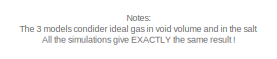
[diagram: root canvas - part 1/2, top center region]
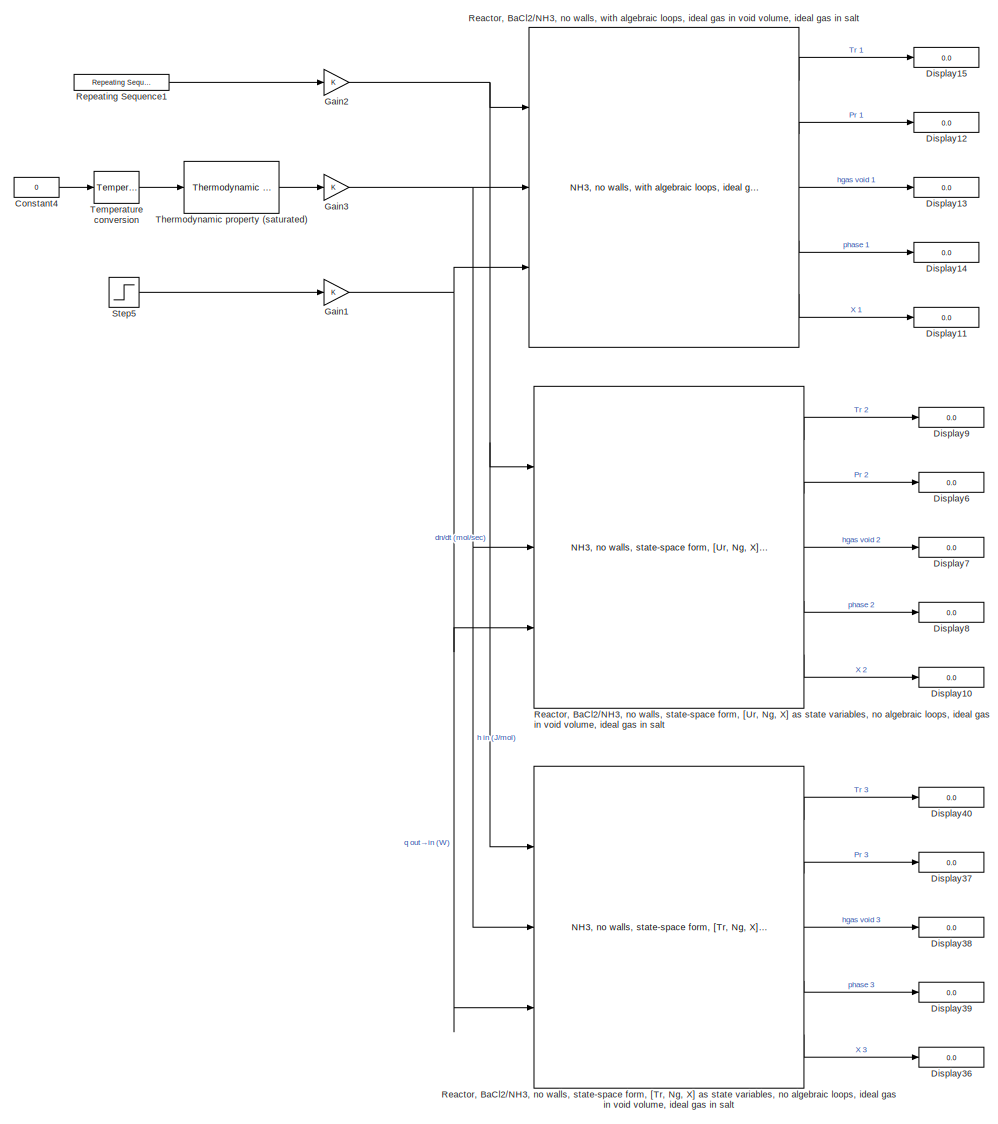
[diagram: root canvas - part 2/2, most of the canvas]
MODEL slx_cdc40fb6b7f8
KIND model
CONFIG AbsTol = auto
CONFIG EnableMultiTasking = off
CONFIG FixedStep = auto
CONFIG MaxStep = 0.2
CONFIG MinStep = auto
CONFIG RelTol = 1e-3
CONFIG SampleTimeConstraint = Unconstrained
CONFIG Solver = ode23tb
CONFIG SolverName = ode23tb
CONFIG StartTime = 0.0
CONFIG StopTime = 1400
BLOCK [Constant] Constant4
  Value = 0
BLOCK [Display] Display10
  Decimation = 1
  Ports = [1]
BLOCK [Display] Display11
  Decimation = 1
  Ports = [1]
BLOCK [Display] Display12
  Decimation = 1
  Ports = [1]
BLOCK [Display] Display13
  Decimation = 1
  Ports = [1]
BLOCK [Display] Display14
  Decimation = 1
  Ports = [1]
BLOCK [Display] Display15
  Decimation = 1
  Ports = [1]
BLOCK [Display] Display36
  Decimation = 1
  Ports = [1]
BLOCK [Display] Display37
  Decimation = 1
  Ports = [1]
BLOCK [Display] Display38
  Decimation = 1
  Ports = [1]
BLOCK [Display] Display39
  Decimation = 1
  Ports = [1]
BLOCK [Display] Display40
  Decimation = 1
  Ports = [1]
BLOCK [Display] Display6
  Decimation = 1
  Ports = [1]
BLOCK [Display] Display7
  Decimation = 1
  Ports = [1]
BLOCK [Display] Display8
  Decimation = 1
  Ports = [1]
BLOCK [Display] Display9
  Decimation = 1
  Ports = [1]
BLOCK [Gain] Gain1
  OutDataTypeStr = Inherit: Inherit via internal rule
  ParamDataTypeStr = Inherit: Inherit via internal rule
  SaturateOnIntegerOverflow = off
BLOCK [Gain] Gain2
  OutDataTypeStr = Inherit: Inherit via internal rule
  ParamDataTypeStr = Inherit: Inherit via internal rule
  SaturateOnIntegerOverflow = off
BLOCK [Gain] Gain3
  OutDataTypeStr = Inherit: Inherit via internal rule
  ParamDataTypeStr = Inherit: Inherit via internal rule
  SaturateOnIntegerOverflow = off
BLOCK [Reference] Reactor, BaCl2//NH3, no walls, state-space form, [Tr, Ng, X] as state variables, no algebraic loops, ideal gas in void volume, ideal gas in salt  REF=thermochemical/Reactors/Reactor, BaCl2//NH3, state-space form,  (lib defined in slx_f9e0643dc704)
[Tr, Ng, X] as state variables, no algebraic loops,
ideal gas in void volume, ideal gas in salt/Reactor, BaCl2//NH3, no walls, state-space form,
[Tr, Ng, X] as state variables, no algebraic loops, 
ideal gas in void volume
  Ports = [3, 5]
  SourceBlock = thermochemical/Reactors/Reactor, BaCl2//NH3, state-space form,\n[Tr, Ng, X] as state variables, no algebraic loops,\nideal gas in void volume, ideal gas in salt/Reactor, BaCl2//NH3, no walls, state-space form,\n[Tr, Ng, X] as state variables, no algebraic loops, \nideal gas in void volume
  SourceProductName = @ Thermochemical
  SourceType = reactor_BaCl2_NH3_no_walls_state_space
BLOCK [Reference] Reactor, BaCl2//NH3, no walls, state-space form, [Ur, Ng, X] as state variables, no algebraic loops, ideal gas in void volume, ideal gas in salt  REF=thermochemical/Reactors/Reactor, BaCl2//NH3, state-space form,  (lib defined in slx_f9e0643dc704)
[Ur, Ng, X] as state variables, no algebraic loops,
ideal gas in void volume, ideal gas in salt/Reactor, BaCl2//NH3, no walls, state-space form,
[Ur, Ng, X] as state variables, no algebraic loops,
ideal gas in void volume, ideal gas in salt
  Ports = [3, 5]
  SourceBlock = thermochemical/Reactors/Reactor, BaCl2//NH3, state-space form,\n[Ur, Ng, X] as state variables, no algebraic loops,\nideal gas in void volume, ideal gas in salt/Reactor, BaCl2//NH3, no walls, state-space form,\n[Ur, Ng, X] as state variables, no algebraic loops,\nideal gas in void volume, ideal gas in salt
  SourceProductName = @ Thermochemical
  SourceType = reactor_BaCl2_NH3_no_walls_state_space
BLOCK [Reference] Reactor, BaCl2//NH3, no walls, with algebraic loops, ideal gas in void volume, ideal gas in salt  REF=thermochemical/Reactors/Reactor, BaCl2//NH3, with algebraic loops,  (lib defined in slx_f9e0643dc704)
ideal gas in void volume, ideal gas in salt/Reactor, BaCl2//NH3, no walls, with algebraic loops,
ideal gas in void volume, ideal gas in salt
  Ports = [3, 5]
  SourceBlock = thermochemical/Reactors/Reactor, BaCl2//NH3, with algebraic loops,\nideal gas in void volume, ideal gas in salt/Reactor, BaCl2//NH3, no walls, with algebraic loops,\nideal gas in void volume, ideal gas in salt
  SourceProductName = @ Thermochemical
  SourceType = reactor_BaCl2_NH3_no_walls
BLOCK [Reference] Repeating Sequence1  REF=simulink/Sources/Repeating
Sequence
  Ports = [0, 1]
  SourceBlock = simulink/Sources/Repeating\nSequence
  SourceProductBaseCode = SL
  SourceProductName = Simulink
  SourceType = Repeating table
BLOCK [Step] Step5
  After = +1000
  SampleTime = 0
  Time = 1200
BLOCK [Reference] Temperature conversion  REF=thermochemical/Conversions/Temperature  (lib defined in slx_f9e0643dc704)
conversion
  Ports = [1, 1]
  SourceBlock = thermochemical/Conversions/Temperature\nconversion
  SourceProductName = @ Thermochemical
  SourceType = convert_temperature
BLOCK [Reference] Thermodynamic property (saturated)  REF=thermochemical/Thermodynamic fluid properties/Thermodynamic   (lib defined in slx_f9e0643dc704)
property (saturated)
  Ports = [1, 1]
  SourceBlock = thermochemical/Thermodynamic fluid properties/Thermodynamic \nproperty (saturated)
  SourceProductName = @ Thermochemical
  SourceType = thermodynamic_properties_saturated
ANNOTATION (root): Notes: The 3 models condider ideal gas in void volume and in the salt All the simulations give EXACTLY the same result !
LINE Constant4:1 -> Temperature conversion:1
NET Gain1:1 -> Reactor, BaCl2//NH3, no walls, state-space form, [Tr, Ng, X] as state variables, no algebraic loops, ideal gas in void volume, ideal gas in salt:3, Reactor, BaCl2//NH3, no walls, state-space form, [Ur, Ng, X] as state variables, no algebraic loops, ideal gas in void volume, ideal gas in salt:3, Reactor, BaCl2//NH3, no walls, with algebraic loops, ideal gas in void volume, ideal gas in salt:3
NET Gain2:1 -> Reactor, BaCl2//NH3, no walls, state-space form, [Tr, Ng, X] as state variables, no algebraic loops, ideal gas in void volume, ideal gas in salt:1, Reactor, BaCl2//NH3, no walls, state-space form, [Ur, Ng, X] as state variables, no algebraic loops, ideal gas in void volume, ideal gas in salt:1, Reactor, BaCl2//NH3, no walls, with algebraic loops, ideal gas in void volume, ideal gas in salt:1
NET Gain3:1 -> Reactor, BaCl2//NH3, no walls, state-space form, [Tr, Ng, X] as state variables, no algebraic loops, ideal gas in void volume, ideal gas in salt:2, Reactor, BaCl2//NH3, no walls, state-space form, [Ur, Ng, X] as state variables, no algebraic loops, ideal gas in void volume, ideal gas in salt:2, Reactor, BaCl2//NH3, no walls, with algebraic loops, ideal gas in void volume, ideal gas in salt:2
LINE Reactor, BaCl2//NH3, no walls, state-space form, [Tr, Ng, X] as state variables, no algebraic loops, ideal gas in void volume, ideal gas in salt:1 -> Display40:1
LINE Reactor, BaCl2//NH3, no walls, state-space form, [Tr, Ng, X] as state variables, no algebraic loops, ideal gas in void volume, ideal gas in salt:2 -> Display37:1
LINE Reactor, BaCl2//NH3, no walls, state-space form, [Tr, Ng, X] as state variables, no algebraic loops, ideal gas in void volume, ideal gas in salt:3 -> Display38:1
LINE Reactor, BaCl2//NH3, no walls, state-space form, [Tr, Ng, X] as state variables, no algebraic loops, ideal gas in void volume, ideal gas in salt:4 -> Display39:1
LINE Reactor, BaCl2//NH3, no walls, state-space form, [Tr, Ng, X] as state variables, no algebraic loops, ideal gas in void volume, ideal gas in salt:5 -> Display36:1
LINE Reactor, BaCl2//NH3, no walls, state-space form, [Ur, Ng, X] as state variables, no algebraic loops, ideal gas in void volume, ideal gas in salt:1 -> Display9:1
LINE Reactor, BaCl2//NH3, no walls, state-space form, [Ur, Ng, X] as state variables, no algebraic loops, ideal gas in void volume, ideal gas in salt:2 -> Display6:1
LINE Reactor, BaCl2//NH3, no walls, state-space form, [Ur, Ng, X] as state variables, no algebraic loops, ideal gas in void volume, ideal gas in salt:3 -> Display7:1
LINE Reactor, BaCl2//NH3, no walls, state-space form, [Ur, Ng, X] as state variables, no algebraic loops, ideal gas in void volume, ideal gas in salt:4 -> Display8:1
LINE Reactor, BaCl2//NH3, no walls, state-space form, [Ur, Ng, X] as state variables, no algebraic loops, ideal gas in void volume, ideal gas in salt:5 -> Display10:1
LINE Reactor, BaCl2//NH3, no walls, with algebraic loops, ideal gas in void volume, ideal gas in salt:1 -> Display15:1
LINE Reactor, BaCl2//NH3, no walls, with algebraic loops, ideal gas in void volume, ideal gas in salt:2 -> Display12:1
LINE Reactor, BaCl2//NH3, no walls, with algebraic loops, ideal gas in void volume, ideal gas in salt:3 -> Display13:1
LINE Reactor, BaCl2//NH3, no walls, with algebraic loops, ideal gas in void volume, ideal gas in salt:4 -> Display14:1
LINE Reactor, BaCl2//NH3, no walls, with algebraic loops, ideal gas in void volume, ideal gas in salt:5 -> Display11:1
LINE Repeating Sequence1:1 -> Gain2:1
LINE Step5:1 -> Gain1:1
LINE Temperature conversion:1 -> Thermodynamic property (saturated):1
LINE Thermodynamic property (saturated):1 -> Gain3:1
note: NET lines group one-source signal fan-out (src -> all destinations, sorted); 1:1 wires keep LINE
